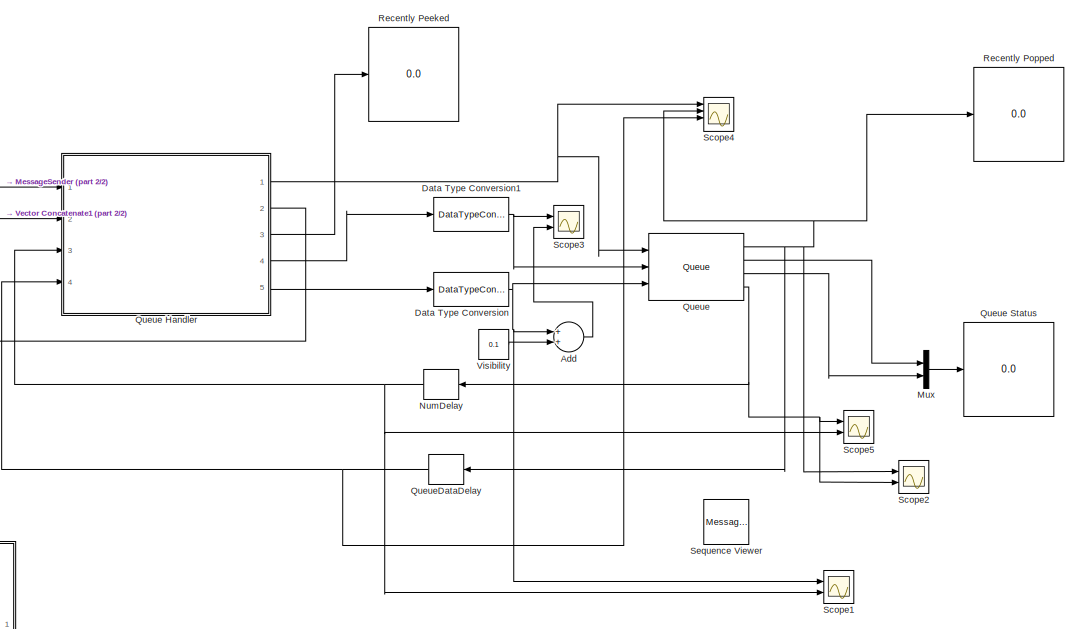
[diagram: root canvas - part 1/2, middle right region]
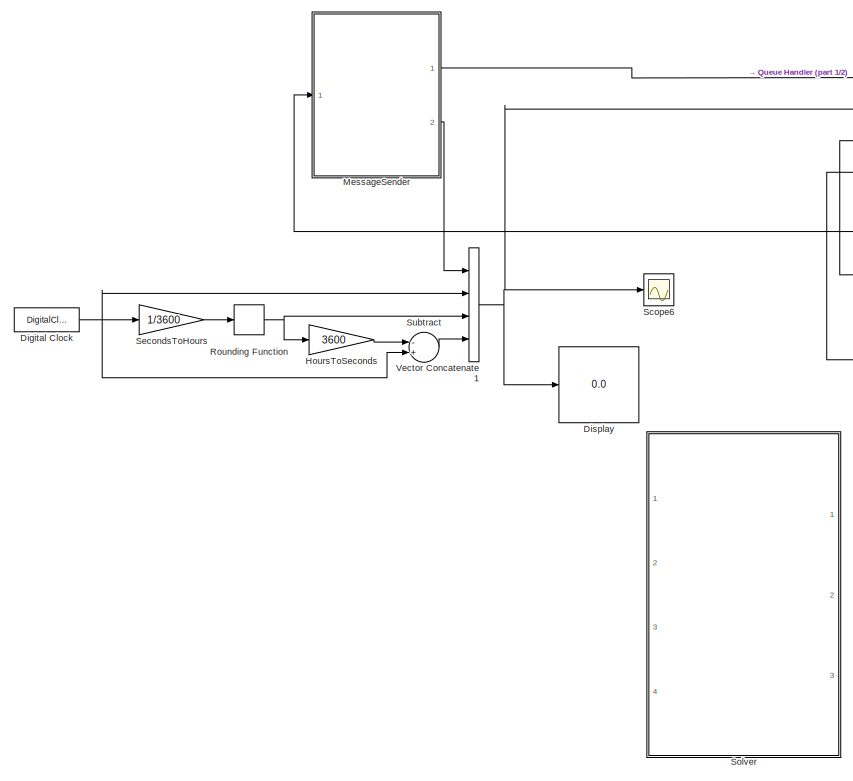
[diagram: root canvas - part 2/2, left side, full height]
MODEL slx_bd13bebd1742
KIND model
CONFIG AbsTol = auto
CONFIG EnableMultiTasking = off
CONFIG FixedStep = auto
CONFIG MaxStep = auto
CONFIG MinStep = auto
CONFIG RelTol = 1e-3
CONFIG SampleTimeConstraint = Unconstrained
CONFIG Solver = VariableStepAuto
CONFIG SolverName = VariableStepAuto
CONFIG StartTime = 0.0
CONFIG StopTime = 20.0
BLOCK [Sum] Add
  InputSameDT = off
  OutDataTypeStr = Inherit: Inherit via internal rule
  Ports = [2, 1]
  SaturateOnIntegerOverflow = off
BLOCK [DataTypeConversion] Data Type Conversion
  OutDataTypeStr = double
  RndMeth = Floor
  SaturateOnIntegerOverflow = off
BLOCK [DataTypeConversion] Data Type Conversion1
  OutDataTypeStr = double
  RndMeth = Floor
  SaturateOnIntegerOverflow = off
BLOCK [DigitalClock] Digital Clock
BLOCK [Display] Display
  Decimation = 1
  Ports = [1]
BLOCK [Gain] HoursToSeconds
  Gain = 3600
  OutDataTypeStr = Inherit: Inherit via internal rule
  ParamDataTypeStr = Inherit: Inherit via internal rule
  SaturateOnIntegerOverflow = off
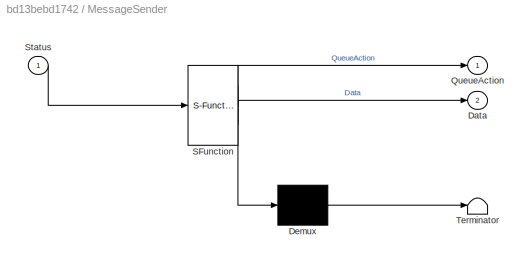
BLOCK [SubSystem] MessageSender
  ErrorFcn = Stateflow.Translate.translate
  PermitHierarchicalResolution = ExplicitOnly
  Ports = [1, 2]
  RequestExecContextInheritance = off
  SFBlockType = Chart
  TreatAsAtomicUnit = on
BLOCK [Demux] MessageSender/ Demux 
  Outputs = 1
  Ports = [1, 1]
BLOCK [S-Function] MessageSender/ SFunction 
  EnableBusSupport = on
  FunctionName = sf_sfun
  InputPortMessageModes = m
  OutputPortMessageModes = n,m,n
  Parameters = i
  PortCounts = [1 3]
  Ports = [1, 3]
  SFcnIsStateOwnerBlock = off
  SFunctionDeploymentMode = off
  Tag = Stateflow S-Function queuetest_fourth 4
BLOCK [Terminator] MessageSender/ Terminator 
BLOCK [Outport] MessageSender/Data
  IconDisplay = Port number
  Port = 2
BLOCK [Outport] MessageSender/QueueAction
  IconDisplay = Port number
BLOCK [Inport] MessageSender/Status
  IconDisplay = Port number
BLOCK [Mux] Mux
  DisplayOption = bar
  Inputs = 2
  Ports = [2, 1]
BLOCK [Delay] NumDelay
  DelayLength = 1
  InitialCondition = 0
  InputPortMap = u0
  Ports = [1, 1]
BLOCK [Reference] Queue  REF=dspbuff3/Queue
  Ports = [3, 4]
  SourceBlock = dspbuff3/Queue
  SourceProductBaseCode = DS
  SourceProductName = DSP System Toolbox
  SourceType = Queue
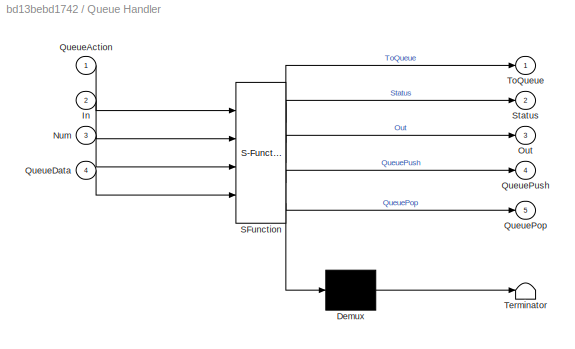
BLOCK [SubSystem] Queue Handler
  ErrorFcn = Stateflow.Translate.translate
  PermitHierarchicalResolution = ExplicitOnly
  Ports = [4, 5]
  RequestExecContextInheritance = off
  SFBlockType = Chart
  TreatAsAtomicUnit = on
BLOCK [Demux] Queue Handler/ Demux 
  Outputs = 1
  Ports = [1, 1]
BLOCK [S-Function] Queue Handler/ SFunction 
  EnableBusSupport = on
  FunctionName = sf_sfun
  InputPortMessageModes = m,n,n,n
  OutputPortMessageModes = n,n,m,n,n,n
  PortCounts = [4 6]
  Ports = [4, 6]
  SFcnIsStateOwnerBlock = off
  SFunctionDeploymentMode = off
  Tag = Stateflow S-Function queuetest_fourth 5
BLOCK [Terminator] Queue Handler/ Terminator 
BLOCK [Inport] Queue Handler/In
  IconDisplay = Port number
  Port = 2
BLOCK [Inport] Queue Handler/Num
  IconDisplay = Port number
  Port = 3
BLOCK [Outport] Queue Handler/Out
  IconDisplay = Port number
  Port = 3
BLOCK [Inport] Queue Handler/QueueAction
  IconDisplay = Port number
BLOCK [Inport] Queue Handler/QueueData
  IconDisplay = Port number
  Port = 4
BLOCK [Outport] Queue Handler/QueuePop
  IconDisplay = Port number
  Port = 5
BLOCK [Outport] Queue Handler/QueuePush
  IconDisplay = Port number
  Port = 4
BLOCK [Outport] Queue Handler/Status
  IconDisplay = Port number
  Port = 2
BLOCK [Outport] Queue Handler/ToQueue
  IconDisplay = Port number
BLOCK [Display] Queue Status
  Decimation = 1
  Ports = [1]
BLOCK [Delay] QueueDataDelay
  DelayLength = 1
  InitialCondition = 0
  InputPortMap = u0
  Ports = [1, 1]
BLOCK [Display] Recently Peeked
  Decimation = 1
  Ports = [1]
BLOCK [Display] Recently Popped
  Decimation = 1
  Ports = [1]
BLOCK [Rounding] Rounding Function
BLOCK [Scope] Scope1
  Floating = off
  NumInputPorts = 2
  Ports = [2]
  ScopeSpecificationString = Simulink.scopes.TimeScopeBlockCfg('CurrentConfiguration', extmgr.ConfigurationSet(extmgr.Configuration('Core','General UI',true),extmgr.Configuration('Core','Source UI',true),extmgr.Configuration('Sources','WiredSimulink',true,'DataLoggingVariableName','ScopeData1'),extmgr.Configuration('Visuals','Time Domain',true,'SerializedDisplays',{struct('MinYLimReal','-1.00000','MaxYLimReal','9.00000','YLab...<+1423ch>
BLOCK [Scope] Scope2
  Floating = off
  NumInputPorts = 2
  Ports = [2]
  ScopeSpecificationString = Simulink.scopes.TimeScopeBlockCfg('CurrentConfiguration', extmgr.ConfigurationSet(extmgr.Configuration('Core','General UI',true),extmgr.Configuration('Core','Source UI',true),extmgr.Configuration('Sources','WiredSimulink',true,'DataLoggingVariableName','ScopeData2'),extmgr.Configuration('Visuals','Time Domain',true,'SerializedDisplays',{struct('MinYLimReal','-1.125','MaxYLimReal','10.125','YLabelR...<+1628ch>
BLOCK [Scope] Scope3
  Floating = off
  NumInputPorts = 2
  Ports = [2]
  ScopeSpecificationString = Simulink.scopes.TimeScopeBlockCfg('CurrentConfiguration', extmgr.ConfigurationSet(extmgr.Configuration('Core','General UI',true),extmgr.Configuration('Core','Source UI',true),extmgr.Configuration('Sources','WiredSimulink',true,'DataLoggingVariableName','ScopeData2'),extmgr.Configuration('Visuals','Time Domain',true,'SerializedDisplays',{struct('MinYLimReal','-0.1375','MaxYLimReal','1.2375','YLabel...<+1408ch>
BLOCK [Scope] Scope4
  Floating = off
  NumInputPorts = 4
  Ports = [4]
  ScopeSpecificationString = Simulink.scopes.TimeScopeBlockCfg('CurrentConfiguration', extmgr.ConfigurationSet(extmgr.Configuration('Core','General UI',true),extmgr.Configuration('Core','Source UI',true),extmgr.Configuration('Sources','WiredSimulink',true,'DataLoggingVariableName','ScopeData3'),extmgr.Configuration('Visuals','Time Domain',true,'SerializedDisplays',{struct('MinYLimReal','-0.1375','MaxYLimReal','1.2375','YLabel...<+2068ch>
BLOCK [Scope] Scope5
  Floating = off
  NumInputPorts = 2
  Ports = [2]
  ScopeSpecificationString = Simulink.scopes.TimeScopeBlockCfg('CurrentConfiguration', extmgr.ConfigurationSet(extmgr.Configuration('Core','General UI',true),extmgr.Configuration('Core','Source UI',true),extmgr.Configuration('Sources','WiredSimulink',true,'DataLoggingVariableName','ScopeData4'),extmgr.Configuration('Visuals','Time Domain',true,'SerializedDisplays',{struct('MinYLimReal','-1.00000','MaxYLimReal','9.00000','YLab...<+1408ch>
BLOCK [Scope] Scope6
  Floating = off
  NumInputPorts = 1
  Ports = [1]
  ScopeSpecificationString = Simulink.scopes.TimeScopeBlockCfg('CurrentConfiguration', extmgr.ConfigurationSet(extmgr.Configuration('Core','General UI',true),extmgr.Configuration('Core','Source UI',true),extmgr.Configuration('Sources','WiredSimulink',true,'DataLoggingVariableName','ScopeData3'),extmgr.Configuration('Visuals','Time Domain',true,'SerializedDisplays',{struct('MinYLimReal','-900.125','MaxYLimReal','8101.125','YLa...<+1437ch>
BLOCK [Gain] SecondsToHours
  Gain = 1/3600
  OutDataTypeStr = Inherit: Inherit via internal rule
  ParamDataTypeStr = Inherit: Inherit via internal rule
  SaturateOnIntegerOverflow = off
BLOCK [MessageViewer] Sequence Viewer
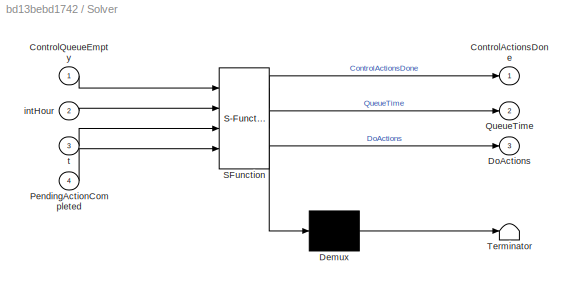
BLOCK [SubSystem] Solver
  Commented = on
  ErrorFcn = Stateflow.Translate.translate
  PermitHierarchicalResolution = ExplicitOnly
  Ports = [4, 3]
  RequestExecContextInheritance = off
  SFBlockType = Chart
  TreatAsAtomicUnit = on
BLOCK [Demux] Solver/ Demux 
  Outputs = 1
  Ports = [1, 1]
BLOCK [S-Function] Solver/ SFunction 
  EnableBusSupport = on
  FunctionName = sf_sfun
  PortCounts = [4 4]
  Ports = [4, 4]
  SFcnIsStateOwnerBlock = off
  SFunctionDeploymentMode = off
  Tag = Stateflow S-Function queuetest_fourth 3
BLOCK [Terminator] Solver/ Terminator 
BLOCK [Outport] Solver/ControlActionsDone
  IconDisplay = Port number
BLOCK [Inport] Solver/ControlQueueEmpty
  IconDisplay = Port number
BLOCK [Outport] Solver/DoActions
  IconDisplay = Port number
  Port = 3
BLOCK [Inport] Solver/PendingActionCompleted
  IconDisplay = Port number
  Port = 4
BLOCK [Outport] Solver/QueueTime
  IconDisplay = Port number
  Port = 2
BLOCK [Inport] Solver/intHour
  IconDisplay = Port number
  Port = 2
BLOCK [Inport] Solver/t
  IconDisplay = Port number
  Port = 3
BLOCK [Sum] Subtract
  InputSameDT = off
  Inputs = -+
  OutDataTypeStr = Inherit: Inherit via internal rule
  Ports = [2, 1]
  SaturateOnIntegerOverflow = off
BLOCK [Concatenate] Vector Concatenate1
  NumInputs = 4
  Ports = [4, 1]
BLOCK [Constant] Visibility
  Value = 0.1
LINE Add:1 -> Scope3:2
NET Data Type Conversion1:1 -> Queue:2, Scope3:1
NET Data Type Conversion:1 -> Add:1, Queue:3, Scope1:1
NET Digital Clock:1 -> SecondsToHours:1, Subtract:2, Vector Concatenate1:2
LINE HoursToSeconds:1 -> Subtract:1
LINE MessageSender:1 -> Queue Handler:1
LINE MessageSender:2 -> Vector Concatenate1:1
LINE Mux:1 -> Queue Status:1
NET NumDelay:1 -> Queue Handler:3, Scope1:2, Scope5:2
NET Queue Handler:1 -> Queue:1, Scope4:1
LINE Queue Handler:2 -> MessageSender:1
LINE Queue Handler:3 -> Recently Peeked:1
LINE Queue Handler:4 -> Data Type Conversion1:1
LINE Queue Handler:5 -> Data Type Conversion:1
NET Queue:1 -> QueueDataDelay:1, Recently Popped:1, Scope2:1, Scope4:2
LINE Queue:2 -> Mux:1
LINE Queue:3 -> Mux:2
NET Queue:4 -> NumDelay:1, Scope2:2, Scope5:1
NET QueueDataDelay:1 -> Queue Handler:4, Scope4:3
NET Rounding Function:1 -> HoursToSeconds:1, Vector Concatenate1:3
LINE SecondsToHours:1 -> Rounding Function:1
LINE Subtract:1 -> Vector Concatenate1:4
NET Vector Concatenate1:1 -> Display:1, Queue Handler:2, Scope6:1
LINE Visibility:1 -> Add:2
note: NET lines group one-source signal fan-out (src -> all destinations, sorted); 1:1 wires keep LINE
CHART Solver states=0 transitions=43
CHART MessageSender states=5 transitions=16
  STATE_LABEL 'SayPush\nen:\nData = i;\nQueueAction.data = ...\n    QueueActions.PUSH;\nsend(QueueAction);\ni = i+1;'
  STATE_LABEL 'SayPop\nen:\nQueueAction.data = ...\n    QueueActions.POP;\nsend(QueueAction);\ni = i+1;'
  STATE_LABEL 'SayPeek\nen:\nQueueAction.data = 3;\nsend(QueueAction);'
  STATE_LABEL 'SayPopAgain\nen:\nQueueAction.data = 2;\nsend(QueueAction);\ni = i+1;'
  STATE_LABEL 'Asleep'
CHART Queue Handler states=7 transitions=49
  STATE_LABEL 'Asleep'
  STATE_LABEL 'DoNearestActions'
  STATE_LABEL '% do only those actions with the same delay time as the first action time return time\n{PendingActionsCompleted = false;\n}'
  STATE_LABEL '[Num > 0]'
  STATE_LABEL "{%QueuePeek\nt = QueueData(1,1); % first item's ActionTime\nHour = t.Hour;\nsec = t.Sec;\nii = 2;}"
  STATE_LABEL '{Status.data = 2;\n% error\nsend(Status);}'
  STATE_LABEL '[ii <= Num]'
  STATE_LABEL '{send(QueuePop);\nOut = QueueData;\n%send(DoPendingAction);\n}'
  STATE_LABEL '{ii = ii + 1;}'
  STATE_LABEL 'Popping'
  STATE_LABEL '[Num ~= 0]'
  STATE_LABEL '{Status.data = 2;\n% error\nsend(Status);}'
  STATE_LABEL '{send(QueuePop);}'
  STATE_LABEL 'Peeking'
  STATE_LABEL '[Num ~= 0]'
  STATE_LABEL '{send(QueuePop);\nOut = QueueData;\nToQueue = QueueData;\nsend(QueuePush);\n}\n% Put most-recently-viewed data back in front'
  STATE_LABEL '{Status.data = 2;\n% error\nsend(Status);}'
  STATE_LABEL '[ii <= Num]'
  STATE_LABEL '{send(QueuePop);\nToQueue = QueueData;\nsend(QueuePush);\n}'
  STATE_LABEL '{ii = 2;}'
  STATE_LABEL '{ii = ii + 1;}'
  STATE_LABEL 'DoAllActions'
  STATE_LABEL '[Num ~= 0]'
  STATE_LABEL '{ii = 2;}'
  STATE_LABEL '{Status.data = 2;\n% error\nsend(Status);}'
  STATE_LABEL '[ii <= Num]'
  STATE_LABEL '{send(QueuePop);\nOut = QueueData;\n%send(DoPendingAction);\n}'
  STATE_LABEL '{ii = ii + 1;}'
  STATE_LABEL 'Pushing\nen:\nToQueue = In;\nsend(QueuePush);'
  STATE_LABEL 'ReadyAgain\nStatus.data = 1; % ready\nsend(Status);'
